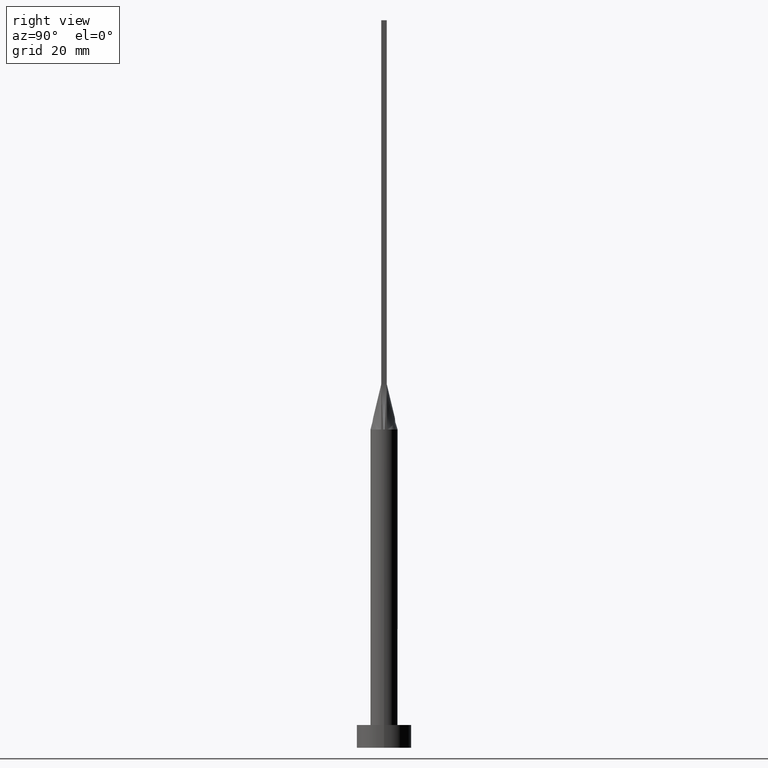
[diagram: clean part render]
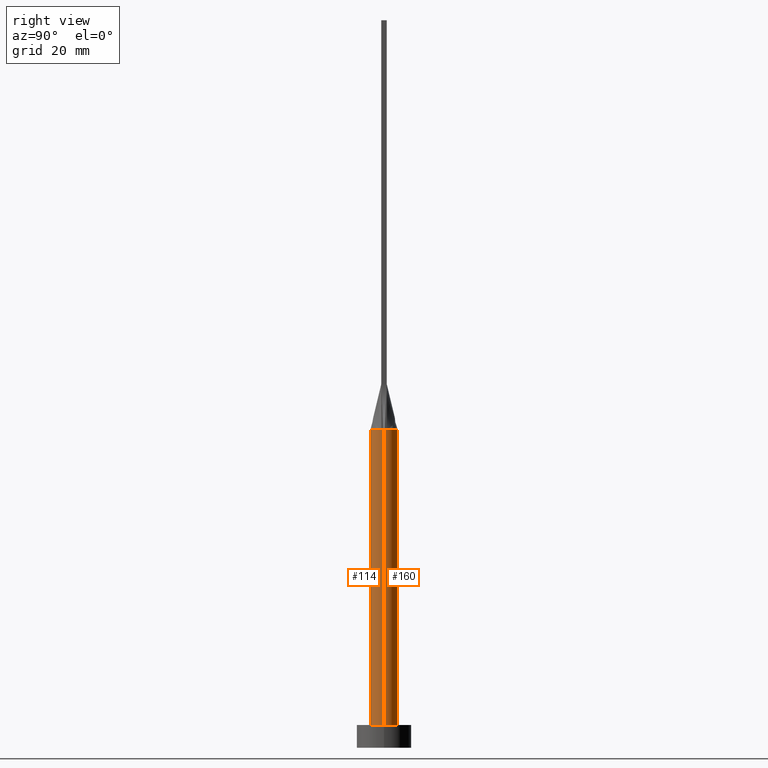
[diagram: same view with one multi-face feature highlighted, each face labeled with its STEP entity id]
A machine part, right view. The highlighted faces form ONE feature: a constant-radius fillet chain: 2 tangent blend faces with common blend radius 3 mm. The faces share edges in the B-rep.
Their STEP definitions:
[1] entity #114 (Cylinder):
#15 = EDGE_CURVE ( 'NONE', #458, #508, #505, .T. ) ;
#24 = DIRECTION ( 'NONE',  ( -0.000000000000000000, -0.000000000000000000, -1.000000000000000000 ) ) ;
#37 = AXIS2_PLACEMENT_3D ( 'NONE', #415, #194, #220 ) ;
#82 = CIRCLE ( 'NONE', #409, 3.000000000000000444 ) ;
#92 = CYLINDRICAL_SURFACE ( 'NONE', #155, 3.000000000000000444 ) ;
#100 = LINE ( 'NONE', #466, #219 ) ;
#112 = VERTEX_POINT ( 'NONE', #276 ) ;
#113 = CARTESIAN_POINT ( 'NONE',  ( 0.000000000000000000, 0.000000000000000000, 70.00000000000000000 ) ) ;
#114 = ADVANCED_FACE ( 'NONE', ( #552 ), #92, .T. ) ;
#117 = ORIENTED_EDGE ( 'NONE', *, *, #298, .F. ) ;
#134 = AXIS2_PLACEMENT_3D ( 'NONE', #269, #497, #443 ) ;
#155 = AXIS2_PLACEMENT_3D ( 'NONE', #546, #512, #404 ) ;
#159 = CIRCLE ( 'NONE', #134, 3.000000000000000444 ) ;
#190 = ORIENTED_EDGE ( 'NONE', *, *, #15, .F. ) ;
#194 = DIRECTION ( 'NONE',  ( 0.000000000000000000, 0.000000000000000000, 1.000000000000000000 ) ) ;
#204 = CARTESIAN_POINT ( 'NONE',  ( 2.999603793582328759, 7.166726372340513095E-16, 70.00000000000000000 ) ) ;
#205 = EDGE_LOOP ( 'NONE', ( #377, #407, #117, #190, #470, #570 ) ) ;
#219 = VECTOR ( 'NONE', #554, 1000.000000000000000 ) ;
#220 = DIRECTION ( 'NONE',  ( 1.000000000000000000, -8.881784197001252323E-15, 0.000000000000000000 ) ) ;
#230 = EDGE_CURVE ( 'NONE', #238, #300, #281, .T. ) ;
#238 = VERTEX_POINT ( 'NONE', #264 ) ;
#254 = EDGE_CURVE ( 'NONE', #300, #112, #532, .T. ) ;
#264 = CARTESIAN_POINT ( 'NONE',  ( 2.931332910560268790, -0.6395638358681950963, 70.00000000000000000 ) ) ;
#267 = CARTESIAN_POINT ( 'NONE',  ( -2.999603793582328315, -7.025298958605770567E-16, 70.00000000000000000 ) ) ;
#269 = CARTESIAN_POINT ( 'NONE',  ( 0.000000000000000000, 0.000000000000000000, 5.000000000000000000 ) ) ;
#276 = CARTESIAN_POINT ( 'NONE',  ( 3.000000000000000444, 3.673940397442060361E-16, 5.000000000000000000 ) ) ;
#281 = CIRCLE ( 'NONE', #37, 3.000000000000000444 ) ;
#296 = DIRECTION ( 'NONE',  ( 0.000000000000000000, 0.000000000000000000, 1.000000000000000000 ) ) ;
#298 = EDGE_CURVE ( 'NONE', #508, #238, #82, .T. ) ;
#300 = VERTEX_POINT ( 'NONE', #204 ) ;
#336 = DIRECTION ( 'NONE',  ( 0.000000000000000000, 0.000000000000000000, 1.000000000000000000 ) ) ;
#341 = DIRECTION ( 'NONE',  ( 1.000000000000000000, 0.000000000000000000, 0.000000000000000000 ) ) ;
#376 = CARTESIAN_POINT ( 'NONE',  ( 0.000000000000000000, 0.000000000000000000, 70.00000000000000000 ) ) ;
#377 = ORIENTED_EDGE ( 'NONE', *, *, #254, .F. ) ;
#404 = DIRECTION ( 'NONE',  ( -1.000000000000000000, 0.000000000000000000, 0.000000000000000000 ) ) ;
#407 = ORIENTED_EDGE ( 'NONE', *, *, #230, .F. ) ;
#409 = AXIS2_PLACEMENT_3D ( 'NONE', #376, #336, #558 ) ;
#415 = CARTESIAN_POINT ( 'NONE',  ( 0.000000000000000000, 0.000000000000000000, 70.00000000000000000 ) ) ;
#417 = CARTESIAN_POINT ( 'NONE',  ( -3.000000000000000444, 0.000000000000000000, 5.000000000000000000 ) ) ;
#421 = CARTESIAN_POINT ( 'NONE',  ( 3.000000000000000444, 3.673940397442060361E-16, 70.00000000000000000 ) ) ;
#436 = VECTOR ( 'NONE', #24, 1000.000000000000000 ) ;
#443 = DIRECTION ( 'NONE',  ( 1.000000000000000000, 0.000000000000000000, 0.000000000000000000 ) ) ;
#458 = VERTEX_POINT ( 'NONE', #267 ) ;
#466 = CARTESIAN_POINT ( 'NONE',  ( -3.000000000000000444, 0.000000000000000000, 70.00000000000000000 ) ) ;
#470 = ORIENTED_EDGE ( 'NONE', *, *, #526, .T. ) ;
#491 = EDGE_CURVE ( 'NONE', #571, #112, #159, .T. ) ;
#497 = DIRECTION ( 'NONE',  ( 0.000000000000000000, 0.000000000000000000, 1.000000000000000000 ) ) ;
#505 = CIRCLE ( 'NONE', #563, 3.000000000000000444 ) ;
#508 = VERTEX_POINT ( 'NONE', #518 ) ;
#512 = DIRECTION ( 'NONE',  ( -0.000000000000000000, -0.000000000000000000, -1.000000000000000000 ) ) ;
#518 = CARTESIAN_POINT ( 'NONE',  ( -2.931315536094174057, -0.6395601373676296220, 70.00000000000000000 ) ) ;
#526 = EDGE_CURVE ( 'NONE', #458, #571, #100, .T. ) ;
#532 = LINE ( 'NONE', #421, #436 ) ;
#546 = CARTESIAN_POINT ( 'NONE',  ( 0.000000000000000000, 0.000000000000000000, 70.00000000000000000 ) ) ;
#552 = FACE_OUTER_BOUND ( 'NONE', #205, .T. ) ;
#554 = DIRECTION ( 'NONE',  ( -0.000000000000000000, -0.000000000000000000, -1.000000000000000000 ) ) ;
#558 = DIRECTION ( 'NONE',  ( 1.000000000000000000, 0.000000000000000000, 0.000000000000000000 ) ) ;
#563 = AXIS2_PLACEMENT_3D ( 'NONE', #113, #296, #341 ) ;
#570 = ORIENTED_EDGE ( 'NONE', *, *, #491, .T. ) ;
#571 = VERTEX_POINT ( 'NONE', #417 ) ;
[2] entity #160 (Cylinder):
#2 = CARTESIAN_POINT ( 'NONE',  ( 2.931303352270923757, 0.6395574164693091923, 70.00000000000000000 ) ) ;
#6 = DIRECTION ( 'NONE',  ( -0.000000000000000000, -0.000000000000000000, -1.000000000000000000 ) ) ;
#12 = CARTESIAN_POINT ( 'NONE',  ( -2.518011668798964653, 1.657305971825549840, 70.00000000000002842 ) ) ;
#13 = VERTEX_POINT ( 'NONE', #342 ) ;
#22 = EDGE_CURVE ( 'NONE', #300, #500, #318, .T. ) ;
#24 = DIRECTION ( 'NONE',  ( -0.000000000000000000, -0.000000000000000000, -1.000000000000000000 ) ) ;
#25 = ORIENTED_EDGE ( 'NONE', *, *, #193, .F. ) ;
#32 = EDGE_LOOP ( 'NONE', ( #74, #212, #331, #461, #337, #25 ) ) ;
#51 = CARTESIAN_POINT ( 'NONE',  ( -0.8041209001220690489, 2.916015559847871419, 70.00000000000002842 ) ) ;
#59 = DIRECTION ( 'NONE',  ( 0.000000000000000000, 0.000000000000000000, 1.000000000000000000 ) ) ;
#69 = AXIS2_PLACEMENT_3D ( 'NONE', #183, #59, #333 ) ;
#74 = ORIENTED_EDGE ( 'NONE', *, *, #22, .F. ) ;
#94 = CARTESIAN_POINT ( 'NONE',  ( -0.4026715616377299356, 2.999999999999999556, 70.00000000000000000 ) ) ;
#98 = CARTESIAN_POINT ( 'NONE',  ( 0.4026715616377294915, 2.999999999999999556, 70.00000000000000000 ) ) ;
#100 = LINE ( 'NONE', #466, #219 ) ;
#112 = VERTEX_POINT ( 'NONE', #276 ) ;
#132 = AXIS2_PLACEMENT_3D ( 'NONE', #543, #6, #330 ) ;
#138 = EDGE_CURVE ( 'NONE', #112, #571, #580, .T. ) ;
#149 = CARTESIAN_POINT ( 'NONE',  ( 1.517787371616672099, 2.616501225271827824, 70.00000000000002842 ) ) ;
#160 = ADVANCED_FACE ( 'NONE', ( #450 ), #324, .T. ) ;
#165 = EDGE_CURVE ( 'NONE', #13, #458, #387, .T. ) ;
#183 = CARTESIAN_POINT ( 'NONE',  ( 0.000000000000000000, 0.000000000000000000, 5.000000000000000000 ) ) ;
#193 = EDGE_CURVE ( 'NONE', #500, #13, #213, .T. ) ;
#204 = CARTESIAN_POINT ( 'NONE',  ( 2.999603793582328759, 7.166726372340513095E-16, 70.00000000000000000 ) ) ;
#208 = AXIS2_PLACEMENT_3D ( 'NONE', #523, #430, #541 ) ;
#212 = ORIENTED_EDGE ( 'NONE', *, *, #254, .T. ) ;
#213 = B_SPLINE_CURVE_WITH_KNOTS ( 'NONE', 3,
 ( #411, #372, #502, #231, #555, #322, #149, #499, #98, #94, #51, #279, #362, #233, #12, #406, #240, #237 ),
 .UNSPECIFIED., .F., .F.,
 ( 4, 2, 2, 2, 2, 2, 2, 2, 4 ),
 ( 0.000000000000000000, 0.1250000000000000000, 0.2500000000000000000, 0.3750000000000000000, 0.5000000000000000000, 0.6250000000000000000, 0.7500000000000000000, 0.8750000000000000000, 1.000000000000000000 ),
 .UNSPECIFIED. ) ;
#219 = VECTOR ( 'NONE', #554, 1000.000000000000000 ) ;
#231 = CARTESIAN_POINT ( 'NONE',  ( 2.518011668798964209, 1.657305971825549840, 70.00000000000000000 ) ) ;
#233 = CARTESIAN_POINT ( 'NONE',  ( -2.328745122427008152, 1.922758842442225280, 69.99999999999998579 ) ) ;
#237 = CARTESIAN_POINT ( 'NONE',  ( -2.931320679040856803, 0.6395611071856786012, 70.00000000000000000 ) ) ;
#240 = CARTESIAN_POINT ( 'NONE',  ( -2.878980386154874616, 0.8781411751610629368, 70.00000000000001421 ) ) ;
#242 = DIRECTION ( 'NONE',  ( 0.000000000000000000, 0.000000000000000000, 1.000000000000000000 ) ) ;
#254 = EDGE_CURVE ( 'NONE', #300, #112, #532, .T. ) ;
#267 = CARTESIAN_POINT ( 'NONE',  ( -2.999603793582328315, -7.025298958605770567E-16, 70.00000000000000000 ) ) ;
#276 = CARTESIAN_POINT ( 'NONE',  ( 3.000000000000000444, 3.673940397442060361E-16, 5.000000000000000000 ) ) ;
#279 = CARTESIAN_POINT ( 'NONE',  ( -1.517787371616671654, 2.616501225271827380, 70.00000000000001421 ) ) ;
#300 = VERTEX_POINT ( 'NONE', #204 ) ;
#318 = CIRCLE ( 'NONE', #208, 3.000000000000000444 ) ;
#322 = CARTESIAN_POINT ( 'NONE',  ( 1.829136458871247761, 2.402980488111650992, 69.99999999999998579 ) ) ;
#324 = CYLINDRICAL_SURFACE ( 'NONE', #132, 3.000000000000000444 ) ;
#330 = DIRECTION ( 'NONE',  ( -1.000000000000000000, 0.000000000000000000, 0.000000000000000000 ) ) ;
#331 = ORIENTED_EDGE ( 'NONE', *, *, #138, .T. ) ;
#333 = DIRECTION ( 'NONE',  ( 1.000000000000000000, 0.000000000000000000, 0.000000000000000000 ) ) ;
#337 = ORIENTED_EDGE ( 'NONE', *, *, #165, .F. ) ;
#342 = CARTESIAN_POINT ( 'NONE',  ( -2.931320679040856803, 0.6395611071856786012, 70.00000000000000000 ) ) ;
#362 = CARTESIAN_POINT ( 'NONE',  ( -1.829136458871247761, 2.402980488111649660, 70.00000000000000000 ) ) ;
#372 = CARTESIAN_POINT ( 'NONE',  ( 2.878980386154874616, 0.8781411751610636029, 70.00000000000001421 ) ) ;
#387 = CIRCLE ( 'NONE', #464, 3.000000000000000444 ) ;
#406 = CARTESIAN_POINT ( 'NONE',  ( -2.792624347712117761, 1.135030881087315313, 70.00000000000001421 ) ) ;
#411 = CARTESIAN_POINT ( 'NONE',  ( 2.931303352270923757, 0.6395574164693091923, 70.00000000000000000 ) ) ;
#417 = CARTESIAN_POINT ( 'NONE',  ( -3.000000000000000444, 0.000000000000000000, 5.000000000000000000 ) ) ;
#418 = DIRECTION ( 'NONE',  ( 1.000000000000000000, 0.000000000000000000, 0.000000000000000000 ) ) ;
#421 = CARTESIAN_POINT ( 'NONE',  ( 3.000000000000000444, 3.673940397442060361E-16, 70.00000000000000000 ) ) ;
#430 = DIRECTION ( 'NONE',  ( 0.000000000000000000, 0.000000000000000000, 1.000000000000000000 ) ) ;
#436 = VECTOR ( 'NONE', #24, 1000.000000000000000 ) ;
#450 = FACE_OUTER_BOUND ( 'NONE', #32, .T. ) ;
#458 = VERTEX_POINT ( 'NONE', #267 ) ;
#460 = CARTESIAN_POINT ( 'NONE',  ( 0.000000000000000000, 0.000000000000000000, 70.00000000000000000 ) ) ;
#461 = ORIENTED_EDGE ( 'NONE', *, *, #526, .F. ) ;
#464 = AXIS2_PLACEMENT_3D ( 'NONE', #460, #242, #418 ) ;
#466 = CARTESIAN_POINT ( 'NONE',  ( -3.000000000000000444, 0.000000000000000000, 70.00000000000000000 ) ) ;
#499 = CARTESIAN_POINT ( 'NONE',  ( 0.8041209001220689379, 2.916015559847871863, 70.00000000000001421 ) ) ;
#500 = VERTEX_POINT ( 'NONE', #2 ) ;
#502 = CARTESIAN_POINT ( 'NONE',  ( 2.792624347712116872, 1.135030881087315979, 70.00000000000001421 ) ) ;
#523 = CARTESIAN_POINT ( 'NONE',  ( 0.000000000000000000, 0.000000000000000000, 70.00000000000000000 ) ) ;
#526 = EDGE_CURVE ( 'NONE', #458, #571, #100, .T. ) ;
#532 = LINE ( 'NONE', #421, #436 ) ;
#541 = DIRECTION ( 'NONE',  ( 1.000000000000000000, 0.000000000000000000, 0.000000000000000000 ) ) ;
#543 = CARTESIAN_POINT ( 'NONE',  ( 0.000000000000000000, 0.000000000000000000, 70.00000000000000000 ) ) ;
#554 = DIRECTION ( 'NONE',  ( -0.000000000000000000, -0.000000000000000000, -1.000000000000000000 ) ) ;
#555 = CARTESIAN_POINT ( 'NONE',  ( 2.328745122427009040, 1.922758842442225946, 69.99999999999998579 ) ) ;
#571 = VERTEX_POINT ( 'NONE', #417 ) ;
#580 = CIRCLE ( 'NONE', #69, 3.000000000000000444 ) ;